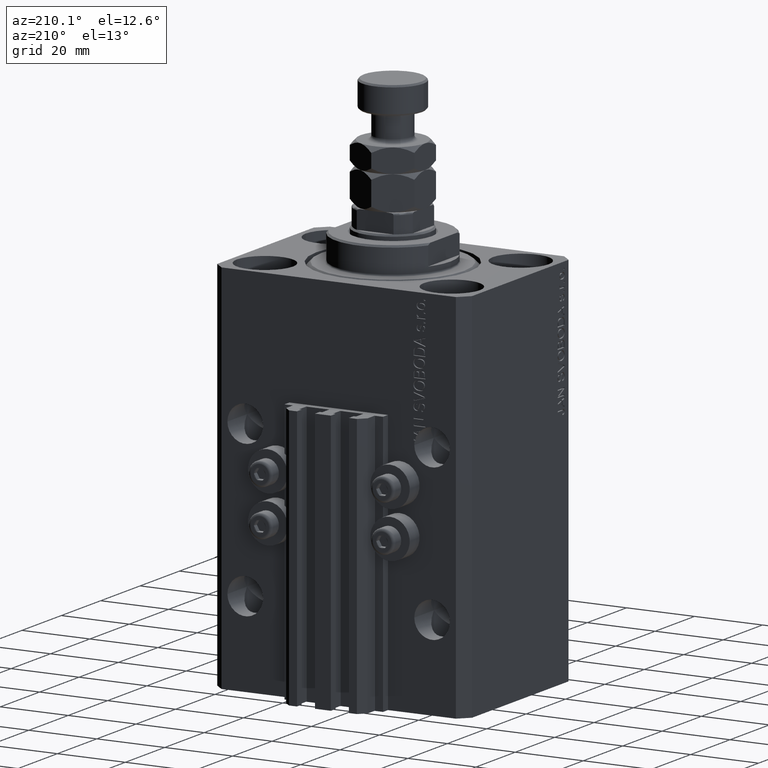
[diagram: clean part render]
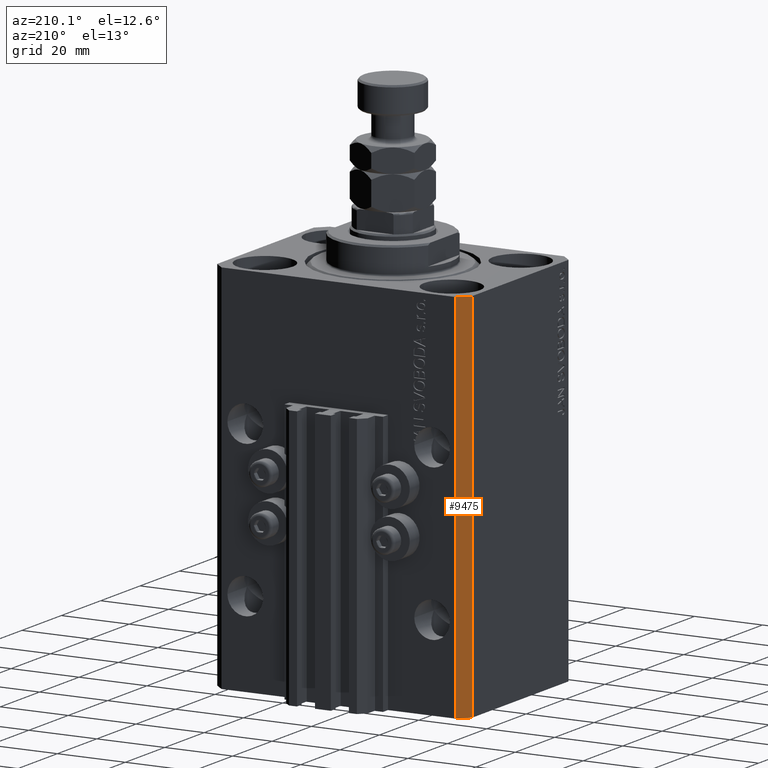
[diagram: same view with one face highlighted and labeled with its STEP entity id]
A machine part, auxiliary view. The second image highlights one B-rep face of the part: STEP entity #9475.
In plain terms, the highlighted planar face has unit normal (-0.7071, 0.7071, 0).
Its self-contained STEP definition (entity closure, byte-faithful):
#326 = FACE_OUTER_BOUND ( 'NONE', #1714, .T. ) ;
#617 = EDGE_CURVE ( 'NONE', #11656, #14521, #30003, .T. ) ;
#1062 = CARTESIAN_POINT ( 'NONE',  ( -37.49999999999999289, 24.50000000000000000, 0.000000000000000000 ) ) ;
#1367 = ORIENTED_EDGE ( 'NONE', *, *, #617, .T. ) ;
#1404 = VECTOR ( 'NONE', #36343, 1000.000000000000000 ) ;
#1714 = EDGE_LOOP ( 'NONE', ( #6070, #42682, #41110, #1367 ) ) ;
#6070 = ORIENTED_EDGE ( 'NONE', *, *, #26189, .F. ) ;
#7296 = DIRECTION ( 'NONE',  ( -0.7071067811865479058, 0.7071067811865471286, 0.000000000000000000 ) ) ;
#7934 = VECTOR ( 'NONE', #12812, 1000.000000000000000 ) ;
#8079 = VERTEX_POINT ( 'NONE', #34231 ) ;
#9475 = ADVANCED_FACE ( 'NONE', ( #326 ), #14964, .T. ) ;
#11656 = VERTEX_POINT ( 'NONE', #17653 ) ;
#12812 = DIRECTION ( 'NONE',  ( 0.000000000000000000, 0.000000000000000000, 1.000000000000000000 ) ) ;
#14521 = VERTEX_POINT ( 'NONE', #1062 ) ;
#14964 = PLANE ( 'NONE',  #36078 ) ;
#17014 = CARTESIAN_POINT ( 'NONE',  ( -34.49999999999999289, 27.50000000000000000, -110.0000000000000000 ) ) ;
#17653 = CARTESIAN_POINT ( 'NONE',  ( -37.49999999999999289, 24.50000000000000000, -110.0000000000000000 ) ) ;
#19709 = CARTESIAN_POINT ( 'NONE',  ( -34.49999999999999289, 27.50000000000000000, 0.000000000000000000 ) ) ;
#20074 = DIRECTION ( 'NONE',  ( 0.000000000000000000, 0.000000000000000000, 1.000000000000000000 ) ) ;
#20307 = CARTESIAN_POINT ( 'NONE',  ( -34.49999999999999289, 27.50000000000000000, 0.000000000000000000 ) ) ;
#23290 = LINE ( 'NONE', #20307, #26119 ) ;
#26119 = VECTOR ( 'NONE', #46356, 1000.000000000000000 ) ;
#26189 = EDGE_CURVE ( 'NONE', #44836, #14521, #23290, .T. ) ;
#26281 = CARTESIAN_POINT ( 'NONE',  ( -37.49999999999999289, 24.50000000000000000, -110.0000000000000000 ) ) ;
#26519 = EDGE_CURVE ( 'NONE', #8079, #44836, #47768, .T. ) ;
#26596 = DIRECTION ( 'NONE',  ( -0.7071067811865471286, -0.7071067811865479058, 0.000000000000000000 ) ) ;
#30003 = LINE ( 'NONE', #26281, #34979 ) ;
#34231 = CARTESIAN_POINT ( 'NONE',  ( -34.49999999999999289, 27.50000000000000000, -110.0000000000000000 ) ) ;
#34979 = VECTOR ( 'NONE', #20074, 1000.000000000000000 ) ;
#36078 = AXIS2_PLACEMENT_3D ( 'NONE', #48704, #7296, #26596 ) ;
#36343 = DIRECTION ( 'NONE',  ( -0.7071067811865471286, -0.7071067811865479058, 0.000000000000000000 ) ) ;
#39813 = LINE ( 'NONE', #48013, #1404 ) ;
#41110 = ORIENTED_EDGE ( 'NONE', *, *, #47875, .T. ) ;
#42682 = ORIENTED_EDGE ( 'NONE', *, *, #26519, .F. ) ;
#44836 = VERTEX_POINT ( 'NONE', #19709 ) ;
#46356 = DIRECTION ( 'NONE',  ( -0.7071067811865471286, -0.7071067811865479058, 0.000000000000000000 ) ) ;
#47768 = LINE ( 'NONE', #17014, #7934 ) ;
#47875 = EDGE_CURVE ( 'NONE', #8079, #11656, #39813, .T. ) ;
#48013 = CARTESIAN_POINT ( 'NONE',  ( -34.49999999999999289, 27.50000000000000000, -110.0000000000000000 ) ) ;
#48704 = CARTESIAN_POINT ( 'NONE',  ( -34.49999999999999289, 27.50000000000000000, -110.0000000000000000 ) ) ;